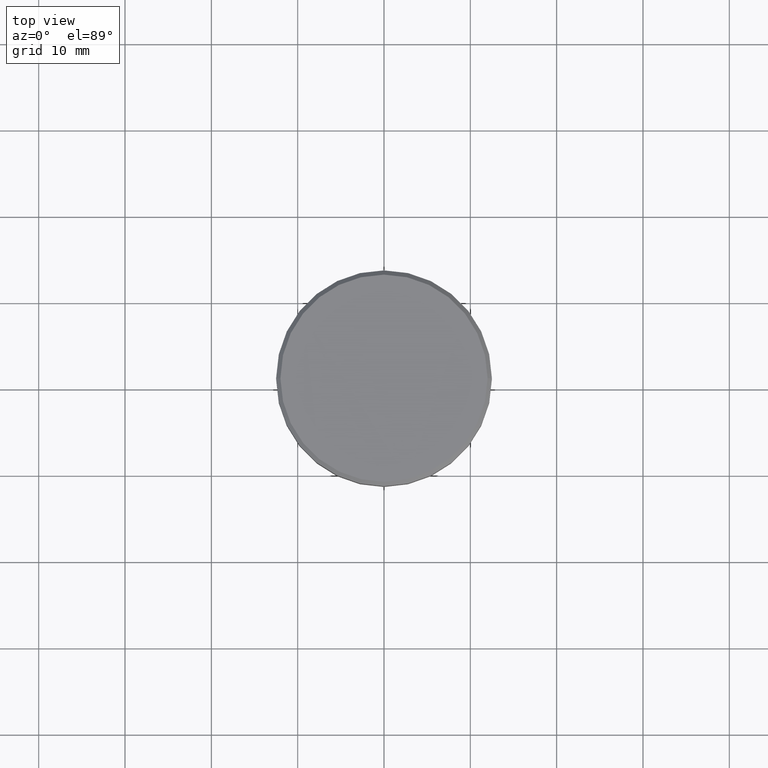
[diagram: clean part render]
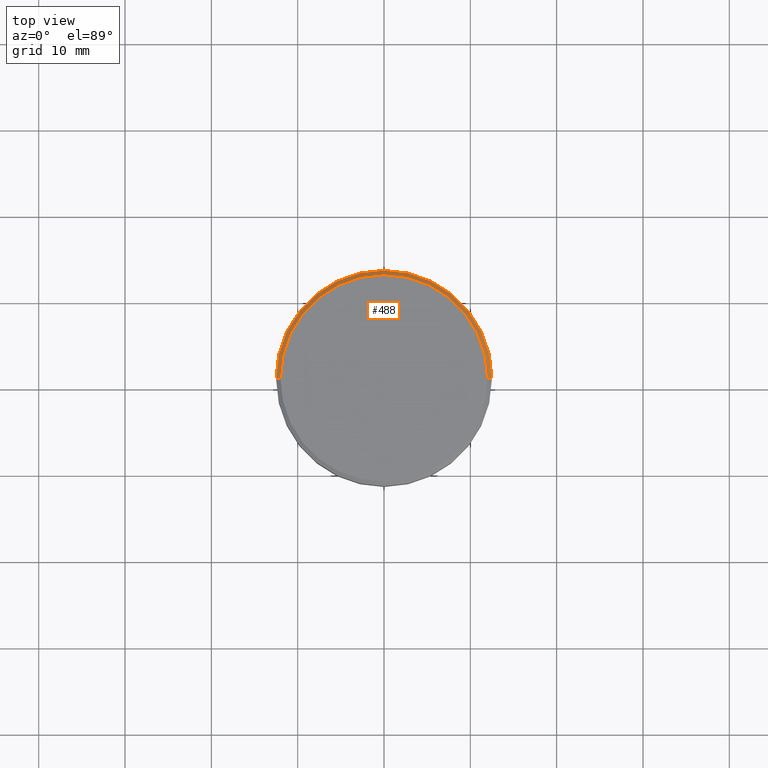
[diagram: same view with one face highlighted and labeled with its STEP entity id]
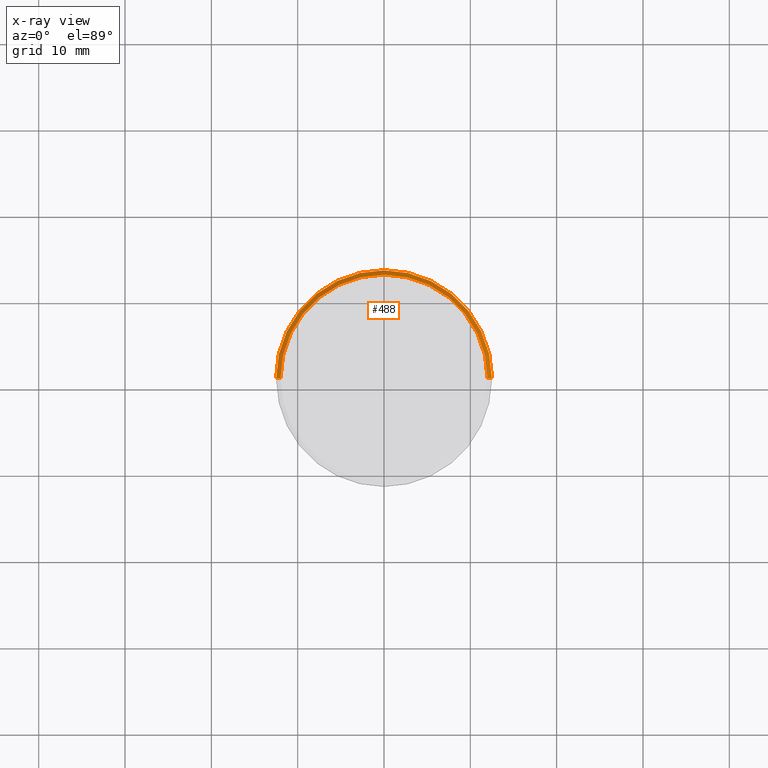
[diagram: x-ray of the same camera — body ghosted, the highlighted face saturated]
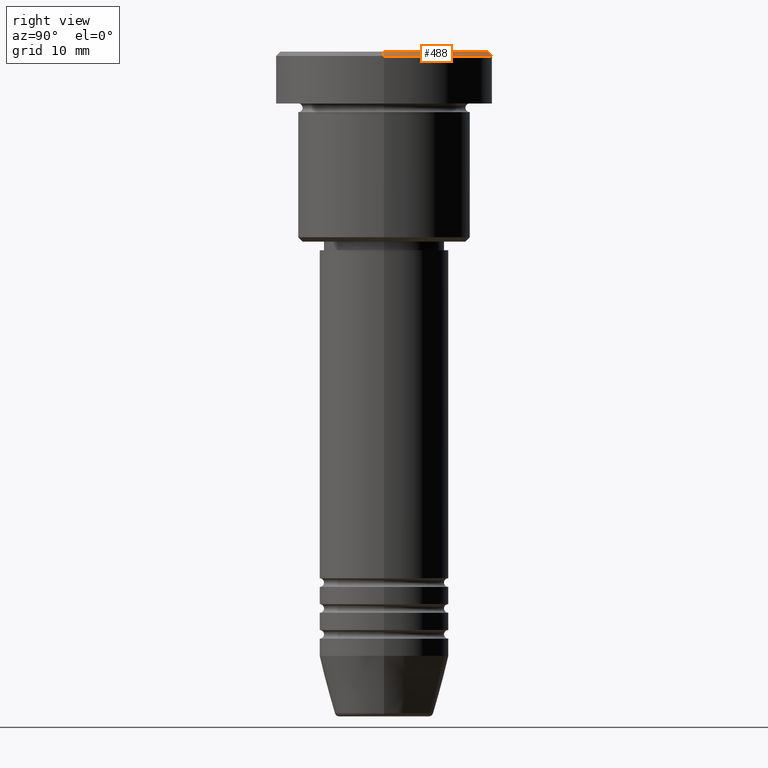
[diagram: same view with one face highlighted and labeled with its STEP entity id]
A machine part, top view. The second image highlights one B-rep face of the part: STEP entity #488.
The next image is the same camera in x-ray: the body ghosted, the highlighted face saturated — about 0% of this face is hidden behind the body in this view.
A second angle (right view) of the same face is appended — the face is thin or edge-on in the first view.
In plain terms, the highlighted conical surface has half-angle 45 deg.
Its self-contained STEP definition (entity closure, byte-faithful):
#106 = VERTEX_POINT ( 'NONE', #321 ) ;
#160 = ORIENTED_EDGE ( 'NONE', *, *, #298, .F. ) ;
#171 = VECTOR ( 'NONE', #453, 999.9999999999998863 ) ;
#178 = AXIS2_PLACEMENT_3D ( 'NONE', #347, #287, #655 ) ;
#249 = DIRECTION ( 'NONE',  ( 0.7071067811865462405, 8.659560562354918067E-17, -0.7071067811865489050 ) ) ;
#287 = DIRECTION ( 'NONE',  ( -0.000000000000000000, -0.000000000000000000, 1.000000000000000000 ) ) ;
#298 = EDGE_CURVE ( 'NONE', #1073, #692, #463, .T. ) ;
#302 = DIRECTION ( 'NONE',  ( -1.000000000000000000, 0.000000000000000000, 0.000000000000000000 ) ) ;
#321 = CARTESIAN_POINT ( 'NONE',  ( 12.50000000000000000, 0.000000000000000000, -0.4999999999999988343 ) ) ;
#347 = CARTESIAN_POINT ( 'NONE',  ( 0.000000000000000000, 0.000000000000000000, 0.000000000000000000 ) ) ;
#359 = DIRECTION ( 'NONE',  ( 1.000000000000000000, 0.000000000000000000, 0.000000000000000000 ) ) ;
#365 = VERTEX_POINT ( 'NONE', #846 ) ;
#380 = FACE_OUTER_BOUND ( 'NONE', #980, .T. ) ;
#416 = AXIS2_PLACEMENT_3D ( 'NONE', #549, #539, #359 ) ;
#453 = DIRECTION ( 'NONE',  ( -0.7071067811865462405, 0.000000000000000000, -0.7071067811865489050 ) ) ;
#463 = CIRCLE ( 'NONE', #178, 12.00000000000000355 ) ;
#488 = ADVANCED_FACE ( 'NONE', ( #380 ), #654, .T. ) ;
#507 = ORIENTED_EDGE ( 'NONE', *, *, #761, .F. ) ;
#526 = LINE ( 'NONE', #941, #871 ) ;
#539 = DIRECTION ( 'NONE',  ( 0.000000000000000000, 0.000000000000000000, -1.000000000000000000 ) ) ;
#546 = CARTESIAN_POINT ( 'NONE',  ( -12.00000000000000355, 0.000000000000000000, 0.000000000000000000 ) ) ;
#549 = CARTESIAN_POINT ( 'NONE',  ( 0.000000000000000000, 0.000000000000000000, -0.4999999999999988343 ) ) ;
#654 = CONICAL_SURFACE ( 'NONE', #706, 12.00000000000000355, 0.7853981633974465026 ) ;
#655 = DIRECTION ( 'NONE',  ( 1.000000000000000000, 0.000000000000000000, 0.000000000000000000 ) ) ;
#692 = VERTEX_POINT ( 'NONE', #1077 ) ;
#706 = AXIS2_PLACEMENT_3D ( 'NONE', #920, #1126, #302 ) ;
#726 = LINE ( 'NONE', #546, #171 ) ;
#761 = EDGE_CURVE ( 'NONE', #692, #365, #726, .T. ) ;
#846 = CARTESIAN_POINT ( 'NONE',  ( -12.50000000000000000, 1.530808498934191521E-15, -0.4999999999999988343 ) ) ;
#871 = VECTOR ( 'NONE', #249, 999.9999999999998863 ) ;
#905 = ORIENTED_EDGE ( 'NONE', *, *, #1163, .F. ) ;
#920 = CARTESIAN_POINT ( 'NONE',  ( 0.000000000000000000, 0.000000000000000000, 0.000000000000000000 ) ) ;
#941 = CARTESIAN_POINT ( 'NONE',  ( 12.00000000000000355, 1.469576158976824342E-15, 0.000000000000000000 ) ) ;
#973 = EDGE_CURVE ( 'NONE', #1073, #106, #526, .T. ) ;
#980 = EDGE_LOOP ( 'NONE', ( #160, #1001, #905, #507 ) ) ;
#1001 = ORIENTED_EDGE ( 'NONE', *, *, #973, .T. ) ;
#1026 = CIRCLE ( 'NONE', #416, 12.50000000000000000 ) ;
#1073 = VERTEX_POINT ( 'NONE', #1140 ) ;
#1077 = CARTESIAN_POINT ( 'NONE',  ( -12.00000000000000355, 0.000000000000000000, 0.000000000000000000 ) ) ;
#1126 = DIRECTION ( 'NONE',  ( 0.000000000000000000, 0.000000000000000000, -1.000000000000000000 ) ) ;
#1140 = CARTESIAN_POINT ( 'NONE',  ( 12.00000000000000355, 1.500192328955507734E-15, 0.000000000000000000 ) ) ;
#1163 = EDGE_CURVE ( 'NONE', #365, #106, #1026, .T. ) ;